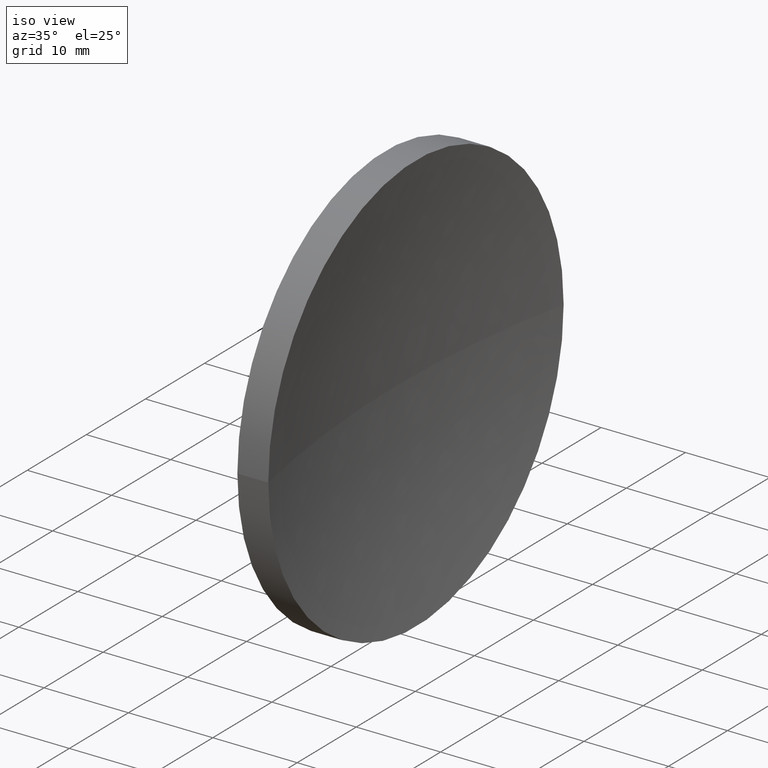
[diagram: clean part render]
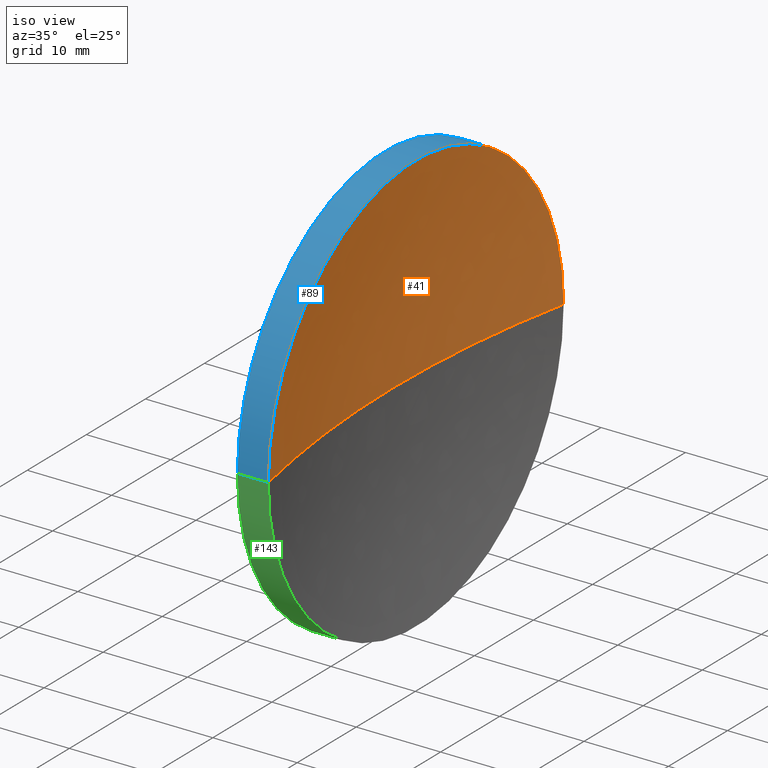
[diagram: same view with three faces highlighted in distinct colors, each labeled with its STEP entity id]
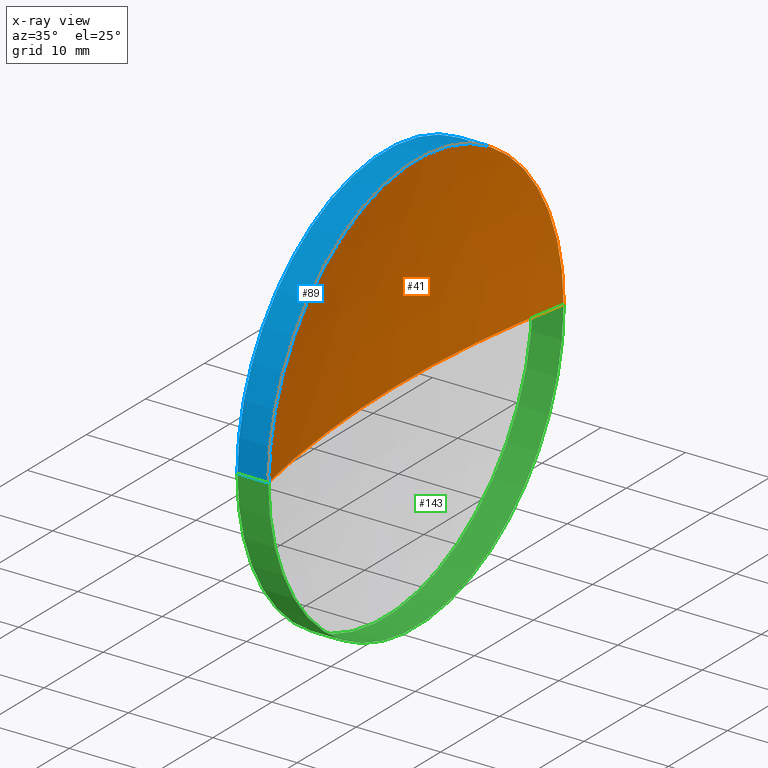
[diagram: x-ray of the same camera — body ghosted, the three highlighted faces saturated]
A machine part, iso view with three faces highlighted in distinct colors.
The next image is the same camera in x-ray (body ghosted, the three faces saturated) — at least one of them is partly hidden behind the body in this view.
Their STEP definitions:

[orange] entity #41 — the highlighted spherical surface has radius 122.8 mm.
#1 = EDGE_CURVE ( 'NONE', #53, #113, #2, .T. ) ;
#2 = CIRCLE ( 'NONE', #134, 122.8000000000000000 ) ;
#12 = DIRECTION ( 'NONE',  ( 1.000000000000000000, 0.0000000000000000000, 0.0000000000000000000 ) ) ;
#15 = CARTESIAN_POINT ( 'NONE',  ( 250.1989956717489700, 130.4336809418805100, 0.0000000000000000000 ) ) ;
#21 = CARTESIAN_POINT ( 'NONE',  ( 372.9989956717490100, 130.4336809418806000, 0.0000000000000000000 ) ) ;
#23 = CARTESIAN_POINT ( 'NONE',  ( 252.7707128095205700, 105.4336809418806800, -3.061616997868363700E-015 ) ) ;
#28 = DIRECTION ( 'NONE',  ( -1.000000000000000000, -6.937607244762875000E-016, -0.0000000000000000000 ) ) ;
#33 = SPHERICAL_SURFACE ( 'NONE', #180, 122.8000000000000300 ) ;
#36 = EDGE_CURVE ( 'NONE', #48, #113, #168, .T. ) ;
#39 = FACE_OUTER_BOUND ( 'NONE', #92, .T. ) ;
#41 = ADVANCED_FACE ( 'NONE', ( #39 ), #33, .F. ) ;
#44 = DIRECTION ( 'NONE',  ( -8.496118506040342700E-032, 1.224646799147353200E-016, -1.000000000000000000 ) ) ;
#48 = VERTEX_POINT ( 'NONE', #83 ) ;
#53 = VERTEX_POINT ( 'NONE', #23 ) ;
#57 = DIRECTION ( 'NONE',  ( 0.0000000000000000000, 1.000000000000000000, 1.224646799147353500E-016 ) ) ;
#60 = AXIS2_PLACEMENT_3D ( 'NONE', #97, #174, #12 ) ;
#73 = ORIENTED_EDGE ( 'NONE', *, *, #1, .T. ) ;
#81 = ORIENTED_EDGE ( 'NONE', *, *, #120, .F. ) ;
#83 = CARTESIAN_POINT ( 'NONE',  ( 252.7707128095205700, 155.4336809418805400, 0.0000000000000000000 ) ) ;
#90 = AXIS2_PLACEMENT_3D ( 'NONE', #102, #28, #132 ) ;
#92 = EDGE_LOOP ( 'NONE', ( #81, #73, #173 ) ) ;
#97 = CARTESIAN_POINT ( 'NONE',  ( 372.9989956717490100, 130.4336809418806000, 0.0000000000000000000 ) ) ;
#98 = DIRECTION ( 'NONE',  ( 0.0000000000000000000, 0.0000000000000000000, -1.000000000000000000 ) ) ;
#102 = CARTESIAN_POINT ( 'NONE',  ( 252.7707128095205700, 130.4336809418806800, 0.0000000000000000000 ) ) ;
#103 = CIRCLE ( 'NONE', #90, 24.99999999999989700 ) ;
#113 = VERTEX_POINT ( 'NONE', #15 ) ;
#120 = EDGE_CURVE ( 'NONE', #53, #48, #103, .T. ) ;
#132 = DIRECTION ( 'NONE',  ( 0.0000000000000000000, -1.000000000000000000, 0.0000000000000000000 ) ) ;
#134 = AXIS2_PLACEMENT_3D ( 'NONE', #21, #44, #57 ) ;
#154 = DIRECTION ( 'NONE',  ( -9.040904109325379100E-016, 1.000000000000000000, 0.0000000000000000000 ) ) ;
#168 = CIRCLE ( 'NONE', #60, 122.8000000000000300 ) ;
#173 = ORIENTED_EDGE ( 'NONE', *, *, #36, .F. ) ;
#174 = DIRECTION ( 'NONE',  ( 0.0000000000000000000, -0.0000000000000000000, 1.000000000000000000 ) ) ;
#180 = AXIS2_PLACEMENT_3D ( 'NONE', #182, #98, #154 ) ;
#182 = CARTESIAN_POINT ( 'NONE',  ( 372.9989956717490100, 130.4336809418806000, 0.0000000000000000000 ) ) ;

[blue] entity #89 — the highlighted cylindrical surface (partial cylindrical patch) has radius 25 mm, axis along (-1, -0, -0).
#6 = AXIS2_PLACEMENT_3D ( 'NONE', #10, #127, #70 ) ;
#10 = CARTESIAN_POINT ( 'NONE',  ( 231.8889825959263400, 130.4336809418806500, 0.0000000000000000000 ) ) ;
#11 = VERTEX_POINT ( 'NONE', #153 ) ;
#13 = DIRECTION ( 'NONE',  ( -1.000000000000000000, -6.937607244762875000E-016, -0.0000000000000000000 ) ) ;
#23 = CARTESIAN_POINT ( 'NONE',  ( 252.7707128095205700, 105.4336809418806800, -3.061616997868363700E-015 ) ) ;
#27 = CIRCLE ( 'NONE', #66, 24.99999999999989700 ) ;
#28 = DIRECTION ( 'NONE',  ( -1.000000000000000000, -6.937607244762875000E-016, -0.0000000000000000000 ) ) ;
#48 = VERTEX_POINT ( 'NONE', #83 ) ;
#50 = ORIENTED_EDGE ( 'NONE', *, *, #175, .F. ) ;
#53 = VERTEX_POINT ( 'NONE', #23 ) ;
#58 = CARTESIAN_POINT ( 'NONE',  ( 249.1079064371447200, 130.4336809418806500, 0.0000000000000000000 ) ) ;
#66 = AXIS2_PLACEMENT_3D ( 'NONE', #58, #106, #160 ) ;
#68 = DIRECTION ( 'NONE',  ( -1.000000000000000000, -6.937607244762875000E-016, -0.0000000000000000000 ) ) ;
#70 = DIRECTION ( 'NONE',  ( 1.110223024625161100E-015, -1.000000000000000000, 0.0000000000000000000 ) ) ;
#83 = CARTESIAN_POINT ( 'NONE',  ( 252.7707128095205700, 155.4336809418805400, 0.0000000000000000000 ) ) ;
#89 = ADVANCED_FACE ( 'NONE', ( #145 ), #122, .T. ) ;
#90 = AXIS2_PLACEMENT_3D ( 'NONE', #102, #28, #132 ) ;
#94 = EDGE_CURVE ( 'NONE', #48, #129, #136, .T. ) ;
#101 = CARTESIAN_POINT ( 'NONE',  ( 231.8889825959263100, 155.4336809418805400, 3.061616997868370400E-015 ) ) ;
#102 = CARTESIAN_POINT ( 'NONE',  ( 252.7707128095205700, 130.4336809418806800, 0.0000000000000000000 ) ) ;
#103 = CIRCLE ( 'NONE', #90, 24.99999999999989700 ) ;
#106 = DIRECTION ( 'NONE',  ( -1.000000000000000000, -6.937607244762875000E-016, -0.0000000000000000000 ) ) ;
#108 = VECTOR ( 'NONE', #13, 1000.000000000000000 ) ;
#114 = CARTESIAN_POINT ( 'NONE',  ( 249.1079064371446900, 155.4336809418805400, 0.0000000000000000000 ) ) ;
#120 = EDGE_CURVE ( 'NONE', #53, #48, #103, .T. ) ;
#121 = ORIENTED_EDGE ( 'NONE', *, *, #124, .F. ) ;
#122 = CYLINDRICAL_SURFACE ( 'NONE', #6, 24.99999999999989700 ) ;
#123 = EDGE_LOOP ( 'NONE', ( #155, #164, #121, #50 ) ) ;
#124 = EDGE_CURVE ( 'NONE', #11, #129, #27, .T. ) ;
#127 = DIRECTION ( 'NONE',  ( -1.000000000000000000, -6.937607244762875000E-016, -0.0000000000000000000 ) ) ;
#129 = VERTEX_POINT ( 'NONE', #114 ) ;
#132 = DIRECTION ( 'NONE',  ( 0.0000000000000000000, -1.000000000000000000, 0.0000000000000000000 ) ) ;
#136 = LINE ( 'NONE', #101, #181 ) ;
#145 = FACE_OUTER_BOUND ( 'NONE', #123, .T. ) ;
#153 = CARTESIAN_POINT ( 'NONE',  ( 249.1079064371447200, 105.4336809418806500, -3.061616997868367700E-015 ) ) ;
#155 = ORIENTED_EDGE ( 'NONE', *, *, #120, .T. ) ;
#159 = CARTESIAN_POINT ( 'NONE',  ( 231.8889825959263600, 105.4336809418807500, 0.0000000000000000000 ) ) ;
#160 = DIRECTION ( 'NONE',  ( 1.110223024625161100E-015, -1.000000000000000000, 0.0000000000000000000 ) ) ;
#164 = ORIENTED_EDGE ( 'NONE', *, *, #94, .T. ) ;
#167 = LINE ( 'NONE', #159, #108 ) ;
#175 = EDGE_CURVE ( 'NONE', #53, #11, #167, .T. ) ;
#181 = VECTOR ( 'NONE', #68, 1000.000000000000000 ) ;

[green] entity #143 — the highlighted cylindrical surface (partial cylindrical patch) has radius 25 mm, axis along (-1, -0, -0).
#7 = AXIS2_PLACEMENT_3D ( 'NONE', #72, #116, #100 ) ;
#9 = CARTESIAN_POINT ( 'NONE',  ( 252.7707128095205700, 130.4336809418806800, 0.0000000000000000000 ) ) ;
#11 = VERTEX_POINT ( 'NONE', #153 ) ;
#13 = DIRECTION ( 'NONE',  ( -1.000000000000000000, -6.937607244762875000E-016, -0.0000000000000000000 ) ) ;
#16 = DIRECTION ( 'NONE',  ( 1.110223024625161100E-015, -1.000000000000000000, 0.0000000000000000000 ) ) ;
#20 = CIRCLE ( 'NONE', #192, 24.99999999999989700 ) ;
#23 = CARTESIAN_POINT ( 'NONE',  ( 252.7707128095205700, 105.4336809418806800, -3.061616997868363700E-015 ) ) ;
#24 = EDGE_CURVE ( 'NONE', #48, #53, #20, .T. ) ;
#34 = CYLINDRICAL_SURFACE ( 'NONE', #7, 24.99999999999989700 ) ;
#35 = ORIENTED_EDGE ( 'NONE', *, *, #94, .F. ) ;
#45 = CARTESIAN_POINT ( 'NONE',  ( 249.1079064371447200, 130.4336809418806500, 0.0000000000000000000 ) ) ;
#48 = VERTEX_POINT ( 'NONE', #83 ) ;
#53 = VERTEX_POINT ( 'NONE', #23 ) ;
#63 = FACE_OUTER_BOUND ( 'NONE', #74, .T. ) ;
#68 = DIRECTION ( 'NONE',  ( -1.000000000000000000, -6.937607244762875000E-016, -0.0000000000000000000 ) ) ;
#72 = CARTESIAN_POINT ( 'NONE',  ( 231.8889825959263400, 130.4336809418806500, 0.0000000000000000000 ) ) ;
#74 = EDGE_LOOP ( 'NONE', ( #35, #115, #119, #151 ) ) ;
#76 = AXIS2_PLACEMENT_3D ( 'NONE', #45, #141, #16 ) ;
#83 = CARTESIAN_POINT ( 'NONE',  ( 252.7707128095205700, 155.4336809418805400, 0.0000000000000000000 ) ) ;
#94 = EDGE_CURVE ( 'NONE', #48, #129, #136, .T. ) ;
#100 = DIRECTION ( 'NONE',  ( 1.110223024625161100E-015, -1.000000000000000000, 0.0000000000000000000 ) ) ;
#101 = CARTESIAN_POINT ( 'NONE',  ( 231.8889825959263100, 155.4336809418805400, 3.061616997868370400E-015 ) ) ;
#108 = VECTOR ( 'NONE', #13, 1000.000000000000000 ) ;
#114 = CARTESIAN_POINT ( 'NONE',  ( 249.1079064371446900, 155.4336809418805400, 0.0000000000000000000 ) ) ;
#115 = ORIENTED_EDGE ( 'NONE', *, *, #24, .T. ) ;
#116 = DIRECTION ( 'NONE',  ( -1.000000000000000000, -6.937607244762875000E-016, -0.0000000000000000000 ) ) ;
#119 = ORIENTED_EDGE ( 'NONE', *, *, #175, .T. ) ;
#129 = VERTEX_POINT ( 'NONE', #114 ) ;
#136 = LINE ( 'NONE', #101, #181 ) ;
#139 = EDGE_CURVE ( 'NONE', #129, #11, #177, .T. ) ;
#141 = DIRECTION ( 'NONE',  ( -1.000000000000000000, -6.937607244762875000E-016, -0.0000000000000000000 ) ) ;
#143 = ADVANCED_FACE ( 'NONE', ( #63 ), #34, .T. ) ;
#151 = ORIENTED_EDGE ( 'NONE', *, *, #139, .F. ) ;
#153 = CARTESIAN_POINT ( 'NONE',  ( 249.1079064371447200, 105.4336809418806500, -3.061616997868367700E-015 ) ) ;
#156 = DIRECTION ( 'NONE',  ( 0.0000000000000000000, -1.000000000000000000, 0.0000000000000000000 ) ) ;
#159 = CARTESIAN_POINT ( 'NONE',  ( 231.8889825959263600, 105.4336809418807500, 0.0000000000000000000 ) ) ;
#167 = LINE ( 'NONE', #159, #108 ) ;
#171 = DIRECTION ( 'NONE',  ( -1.000000000000000000, -6.937607244762875000E-016, -0.0000000000000000000 ) ) ;
#175 = EDGE_CURVE ( 'NONE', #53, #11, #167, .T. ) ;
#177 = CIRCLE ( 'NONE', #76, 24.99999999999989700 ) ;
#181 = VECTOR ( 'NONE', #68, 1000.000000000000000 ) ;
#192 = AXIS2_PLACEMENT_3D ( 'NONE', #9, #171, #156 ) ;